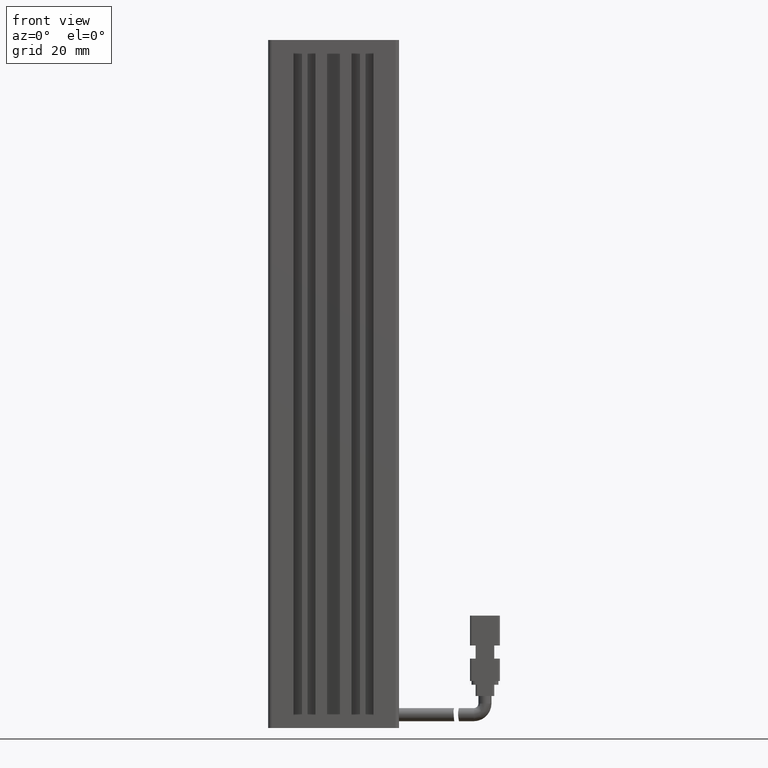
[diagram: clean part render]
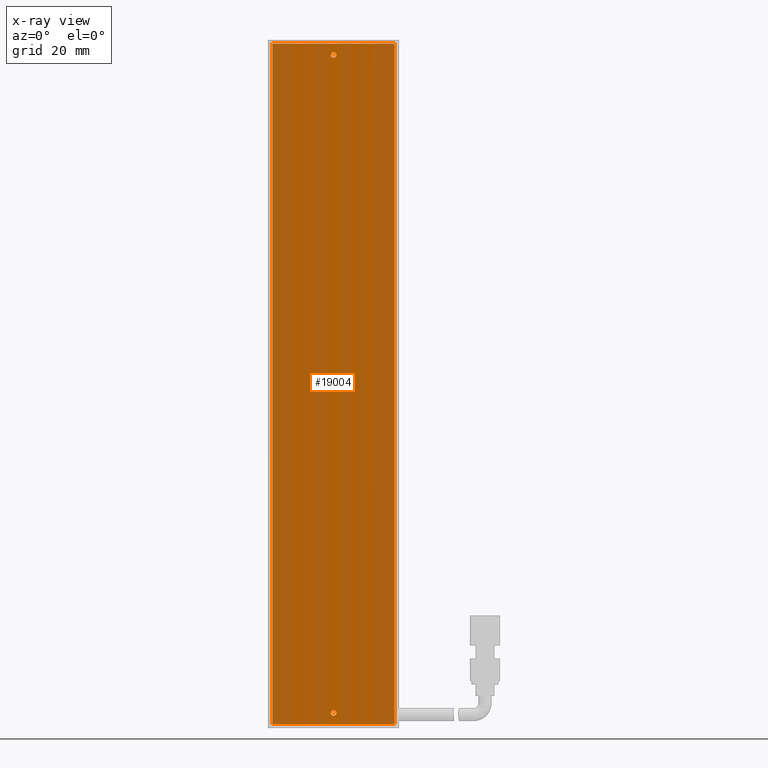
[diagram: x-ray — body ghosted, one internal face saturated and labeled with its STEP entity id]
A machine part, front view, then the same camera in x-ray: the body is ghosted and one INTERNAL B-rep face — a face not visible from any outside direction — is saturated and labeled: STEP entity #19004.
In plain terms, the highlighted planar face has unit normal (0, 1, 0).
Its self-contained STEP definition (entity closure, byte-faithful):
#626 = DIRECTION ( 'NONE',  ( 0.0000000000000000000, 0.0000000000000000000, 1.000000000000000000 ) ) ;
#716 = DIRECTION ( 'NONE',  ( -1.387778780781445400E-016, 0.0000000000000000000, 1.000000000000000000 ) ) ;
#1746 = CIRCLE ( 'NONE', #31271, 0.7500000000000006700 ) ;
#2316 = VERTEX_POINT ( 'NONE', #56244 ) ;
#3343 = VERTEX_POINT ( 'NONE', #54499 ) ;
#7009 = DIRECTION ( 'NONE',  ( -0.0000000000000000000, -1.000000000000000000, -0.0000000000000000000 ) ) ;
#7771 = FACE_BOUND ( 'NONE', #8473, .T. ) ;
#8473 = EDGE_LOOP ( 'NONE', ( #61312, #43280 ) ) ;
#10528 = VERTEX_POINT ( 'NONE', #17756 ) ;
#12003 = CARTESIAN_POINT ( 'NONE',  ( 57.27537974683545500, 32.09073232304837800, -205.9999999999999700 ) ) ;
#12469 = CARTESIAN_POINT ( 'NONE',  ( 57.27537974683544100, 32.09073232304837800, -23.99999999999996100 ) ) ;
#14474 = FACE_OUTER_BOUND ( 'NONE', #33759, .T. ) ;
#16773 = CIRCLE ( 'NONE', #42358, 0.7500000000000006700 ) ;
#17756 = CARTESIAN_POINT ( 'NONE',  ( 40.92537974683542500, 32.09073232304837800, -26.24999999999996400 ) ) ;
#19004 = ADVANCED_FACE ( 'NONE', ( #14474, #7771, #19240 ), #42993, .F. ) ;
#19240 = FACE_BOUND ( 'NONE', #55873, .T. ) ;
#22532 = ORIENTED_EDGE ( 'NONE', *, *, #46247, .F. ) ;
#22927 = LINE ( 'NONE', #46748, #70403 ) ;
#24447 = LINE ( 'NONE', #52411, #69067 ) ;
#24912 = CARTESIAN_POINT ( 'NONE',  ( 24.57537974683542700, 32.09073232304837800, -23.99999999999996400 ) ) ;
#25046 = VERTEX_POINT ( 'NONE', #54995 ) ;
#26386 = EDGE_CURVE ( 'NONE', #25046, #38103, #70688, .T. ) ;
#28126 = DIRECTION ( 'NONE',  ( -0.0000000000000000000, -1.000000000000000000, -0.0000000000000000000 ) ) ;
#28848 = DIRECTION ( 'NONE',  ( -0.0000000000000000000, -1.000000000000000000, -0.0000000000000000000 ) ) ;
#28981 = CARTESIAN_POINT ( 'NONE',  ( 57.27537974683544100, 32.09073232304837800, -23.99999999999996100 ) ) ;
#30216 = VERTEX_POINT ( 'NONE', #32830 ) ;
#31271 = AXIS2_PLACEMENT_3D ( 'NONE', #64742, #28126, #77284 ) ;
#32489 = ORIENTED_EDGE ( 'NONE', *, *, #26386, .F. ) ;
#32830 = CARTESIAN_POINT ( 'NONE',  ( 24.57537974683543800, 32.09073232304837800, -205.9999999999999700 ) ) ;
#33759 = EDGE_LOOP ( 'NONE', ( #22532, #55655, #32489, #38993 ) ) ;
#34244 = VERTEX_POINT ( 'NONE', #37002 ) ;
#34408 = CARTESIAN_POINT ( 'NONE',  ( 57.27537974683546900, 32.09073232304837800, -205.9999999999999700 ) ) ;
#37002 = CARTESIAN_POINT ( 'NONE',  ( 40.92537974683543900, 32.09073232304837800, -203.7499999999999700 ) ) ;
#37185 = DIRECTION ( 'NONE',  ( 0.0000000000000000000, 1.000000000000000000, 0.0000000000000000000 ) ) ;
#38000 = DIRECTION ( 'NONE',  ( 0.0000000000000000000, 0.0000000000000000000, 1.000000000000000000 ) ) ;
#38103 = VERTEX_POINT ( 'NONE', #12003 ) ;
#38993 = ORIENTED_EDGE ( 'NONE', *, *, #54436, .F. ) ;
#39623 = CIRCLE ( 'NONE', #60817, 0.7500000000000006700 ) ;
#41123 = EDGE_CURVE ( 'NONE', #38103, #30216, #67112, .T. ) ;
#42358 = AXIS2_PLACEMENT_3D ( 'NONE', #62872, #50685, #38000 ) ;
#42993 = PLANE ( 'NONE',  #54218 ) ;
#43280 = ORIENTED_EDGE ( 'NONE', *, *, #68847, .F. ) ;
#43625 = CIRCLE ( 'NONE', #69939, 0.7500000000000006700 ) ;
#46247 = EDGE_CURVE ( 'NONE', #30216, #58725, #22927, .T. ) ;
#46748 = CARTESIAN_POINT ( 'NONE',  ( 24.57537974683541300, 32.09073232304837800, -23.99999999999996400 ) ) ;
#46845 = EDGE_CURVE ( 'NONE', #3343, #34244, #1746, .T. ) ;
#50685 = DIRECTION ( 'NONE',  ( -0.0000000000000000000, -1.000000000000000000, -0.0000000000000000000 ) ) ;
#50930 = EDGE_CURVE ( 'NONE', #10528, #2316, #16773, .T. ) ;
#50942 = VECTOR ( 'NONE', #71319, 1000.000000000000000 ) ;
#52411 = CARTESIAN_POINT ( 'NONE',  ( 57.27537974683544100, 32.09073232304837800, -23.99999999999996100 ) ) ;
#54218 = AXIS2_PLACEMENT_3D ( 'NONE', #12469, #37185, #716 ) ;
#54436 = EDGE_CURVE ( 'NONE', #58725, #25046, #24447, .T. ) ;
#54499 = CARTESIAN_POINT ( 'NONE',  ( 40.92537974683543900, 32.09073232304837800, -202.2499999999999700 ) ) ;
#54995 = CARTESIAN_POINT ( 'NONE',  ( 57.27537974683544100, 32.09073232304837800, -23.99999999999996100 ) ) ;
#55655 = ORIENTED_EDGE ( 'NONE', *, *, #41123, .F. ) ;
#55873 = EDGE_LOOP ( 'NONE', ( #70080, #59733 ) ) ;
#56187 = EDGE_CURVE ( 'NONE', #34244, #3343, #43625, .T. ) ;
#56244 = CARTESIAN_POINT ( 'NONE',  ( 40.92537974683542500, 32.09073232304837800, -27.74999999999996400 ) ) ;
#58250 = CARTESIAN_POINT ( 'NONE',  ( 40.92537974683543900, 32.09073232304837800, -202.9999999999999700 ) ) ;
#58725 = VERTEX_POINT ( 'NONE', #24912 ) ;
#59171 = DIRECTION ( 'NONE',  ( 1.387778780781445400E-016, -0.0000000000000000000, -1.000000000000000000 ) ) ;
#59733 = ORIENTED_EDGE ( 'NONE', *, *, #56187, .F. ) ;
#60817 = AXIS2_PLACEMENT_3D ( 'NONE', #73209, #7009, #626 ) ;
#61312 = ORIENTED_EDGE ( 'NONE', *, *, #50930, .F. ) ;
#62872 = CARTESIAN_POINT ( 'NONE',  ( 40.92537974683542500, 32.09073232304837800, -26.99999999999996400 ) ) ;
#64742 = CARTESIAN_POINT ( 'NONE',  ( 40.92537974683543900, 32.09073232304837800, -202.9999999999999700 ) ) ;
#67112 = LINE ( 'NONE', #34408, #50942 ) ;
#68847 = EDGE_CURVE ( 'NONE', #2316, #10528, #39623, .T. ) ;
#69067 = VECTOR ( 'NONE', #70794, 1000.000000000000000 ) ;
#69939 = AXIS2_PLACEMENT_3D ( 'NONE', #58250, #28848, #70542 ) ;
#70080 = ORIENTED_EDGE ( 'NONE', *, *, #46845, .F. ) ;
#70403 = VECTOR ( 'NONE', #77109, 1000.000000000000000 ) ;
#70542 = DIRECTION ( 'NONE',  ( 0.0000000000000000000, 0.0000000000000000000, 1.000000000000000000 ) ) ;
#70688 = LINE ( 'NONE', #28981, #73545 ) ;
#70794 = DIRECTION ( 'NONE',  ( 1.000000000000000000, 0.0000000000000000000, 1.387778780781445400E-016 ) ) ;
#71319 = DIRECTION ( 'NONE',  ( -1.000000000000000000, -0.0000000000000000000, -1.387778780781445400E-016 ) ) ;
#73209 = CARTESIAN_POINT ( 'NONE',  ( 40.92537974683542500, 32.09073232304837800, -26.99999999999996400 ) ) ;
#73545 = VECTOR ( 'NONE', #59171, 1000.000000000000000 ) ;
#77109 = DIRECTION ( 'NONE',  ( -1.387778780781445400E-016, 0.0000000000000000000, 1.000000000000000000 ) ) ;
#77284 = DIRECTION ( 'NONE',  ( 0.0000000000000000000, 0.0000000000000000000, 1.000000000000000000 ) ) ;